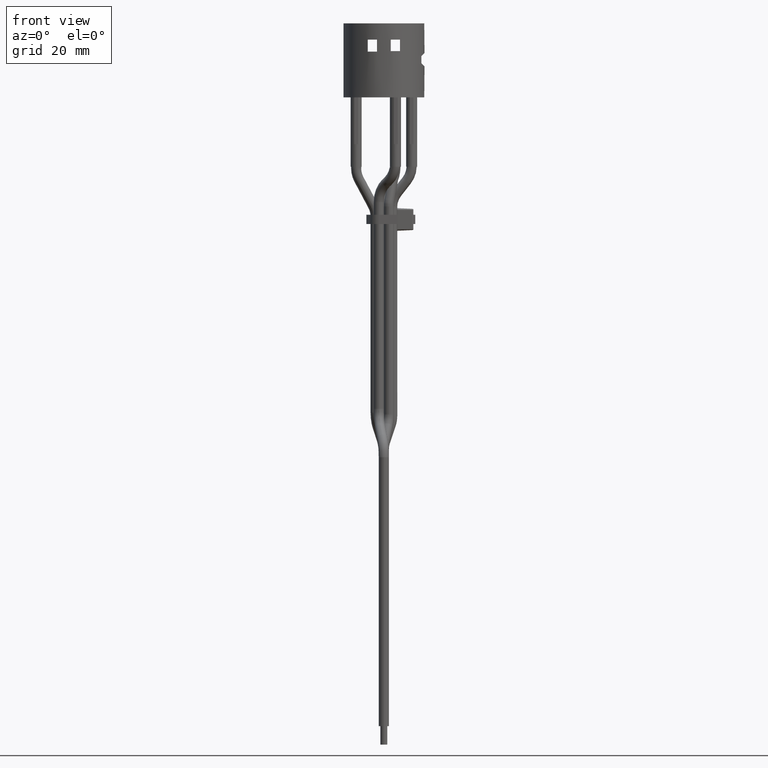
[diagram: clean part render]
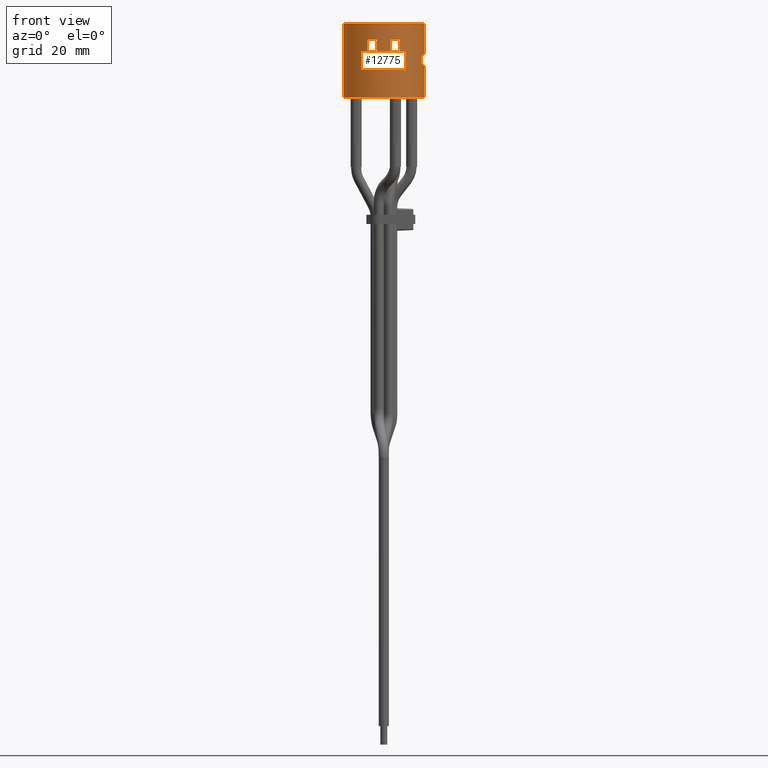
[diagram: same view with one face highlighted and labeled with its STEP entity id]
A machine part, front view. The second image highlights one B-rep face of the part: STEP entity #12775.
In plain terms, the highlighted cylindrical surface (bore or boss wall) has radius 8.8 mm, axis along (0, -0, 1).
Its self-contained STEP definition (entity closure, byte-faithful):
#143=ELLIPSE('',#13459,12.4450793488832,8.8);
#144=ELLIPSE('',#13461,12.4450793488832,8.8);
#325=FACE_BOUND('',#1638,.T.);
#326=FACE_BOUND('',#1639,.T.);
#327=FACE_BOUND('',#1640,.T.);
#328=FACE_BOUND('',#1641,.T.);
#329=FACE_BOUND('',#1642,.T.);
#380=CIRCLE('',#13436,8.8);
#402=CIRCLE('',#13486,8.8);
#403=CIRCLE('',#13487,8.8);
#404=CIRCLE('',#13489,8.8);
#405=CIRCLE('',#13490,8.8);
#406=CIRCLE('',#13492,8.8);
#407=CIRCLE('',#13493,8.8);
#408=CIRCLE('',#13494,8.8);
#409=CIRCLE('',#13495,8.8);
#410=CIRCLE('',#13496,8.8);
#411=CIRCLE('',#13497,8.8);
#412=CIRCLE('',#13498,8.8);
#413=CIRCLE('',#13499,8.8);
#414=CIRCLE('',#13500,8.8);
#669=CYLINDRICAL_SURFACE('',#13491,8.8);
#945=FACE_OUTER_BOUND('',#1637,.T.);
#1637=EDGE_LOOP('',(#9627,#9628,#9629,#9630,#9631,#9632,#9633,#9634,#9635,
#9636,#9637,#9638));
#1638=EDGE_LOOP('',(#9639,#9640,#9641,#9642));
#1639=EDGE_LOOP('',(#9643,#9644,#9645,#9646));
#1640=EDGE_LOOP('',(#9647,#9648,#9649,#9650));
#1641=EDGE_LOOP('',(#9651,#9652,#9653,#9654));
#1642=EDGE_LOOP('',(#9655,#9656,#9657,#9658));
#2838=LINE('',#19204,#4300);
#2839=LINE('',#19205,#4301);
#2910=LINE('',#19793,#4372);
#2912=LINE('',#19797,#4374);
#2914=LINE('',#19811,#4376);
#2915=LINE('',#19812,#4377);
#2916=LINE('',#19817,#4378);
#2917=LINE('',#19820,#4379);
#2918=LINE('',#19825,#4380);
#2919=LINE('',#19828,#4381);
#2920=LINE('',#19833,#4382);
#2921=LINE('',#19836,#4383);
#2922=LINE('',#19841,#4384);
#2923=LINE('',#19844,#4385);
#4300=VECTOR('',#15359,10.);
#4301=VECTOR('',#15360,10.);
#4372=VECTOR('',#15473,10.);
#4374=VECTOR('',#15475,10.);
#4376=VECTOR('',#15495,8.8);
#4377=VECTOR('',#15496,8.8);
#4378=VECTOR('',#15499,10.);
#4379=VECTOR('',#15502,10.);
#4380=VECTOR('',#15505,10.);
#4381=VECTOR('',#15508,10.);
#4382=VECTOR('',#15511,10.);
#4383=VECTOR('',#15514,10.);
#4384=VECTOR('',#15517,10.);
#4385=VECTOR('',#15520,10.);
#5489=VERTEX_POINT('',#18783);
#5651=VERTEX_POINT('',#19194);
#5652=VERTEX_POINT('',#19195);
#5653=VERTEX_POINT('',#19199);
#5654=VERTEX_POINT('',#19200);
#5731=VERTEX_POINT('',#19791);
#5732=VERTEX_POINT('',#19792);
#5733=VERTEX_POINT('',#19794);
#5734=VERTEX_POINT('',#19796);
#5735=VERTEX_POINT('',#19801);
#5736=VERTEX_POINT('',#19805);
#5737=VERTEX_POINT('',#19809);
#5738=VERTEX_POINT('',#19813);
#5739=VERTEX_POINT('',#19814);
#5740=VERTEX_POINT('',#19816);
#5741=VERTEX_POINT('',#19818);
#5742=VERTEX_POINT('',#19821);
#5743=VERTEX_POINT('',#19822);
#5744=VERTEX_POINT('',#19824);
#5745=VERTEX_POINT('',#19826);
#5746=VERTEX_POINT('',#19829);
#5747=VERTEX_POINT('',#19830);
#5748=VERTEX_POINT('',#19832);
#5749=VERTEX_POINT('',#19834);
#5750=VERTEX_POINT('',#19837);
#5751=VERTEX_POINT('',#19838);
#5752=VERTEX_POINT('',#19840);
#5753=VERTEX_POINT('',#19842);
#6914=EDGE_CURVE('',#5489,#5489,#380,.T.);
#7093=EDGE_CURVE('',#5651,#5652,#143,.T.);
#7095=EDGE_CURVE('',#5653,#5654,#144,.T.);
#7097=EDGE_CURVE('',#5654,#5651,#2838,.T.);
#7098=EDGE_CURVE('',#5652,#5653,#2839,.T.);
#7213=EDGE_CURVE('',#5731,#5732,#2910,.T.);
#7215=EDGE_CURVE('',#5734,#5733,#2912,.T.);
#7217=EDGE_CURVE('',#5732,#5735,#402,.T.);
#7218=EDGE_CURVE('',#5735,#5734,#403,.T.);
#7219=EDGE_CURVE('',#5733,#5736,#404,.T.);
#7220=EDGE_CURVE('',#5736,#5731,#405,.T.);
#7221=EDGE_CURVE('',#5737,#5737,#406,.T.);
#7222=EDGE_CURVE('',#5737,#5735,#2914,.T.);
#7223=EDGE_CURVE('',#5736,#5489,#2915,.T.);
#7224=EDGE_CURVE('',#5738,#5739,#407,.T.);
#7225=EDGE_CURVE('',#5739,#5740,#2916,.T.);
#7226=EDGE_CURVE('',#5740,#5741,#408,.T.);
#7227=EDGE_CURVE('',#5741,#5738,#2917,.T.);
#7228=EDGE_CURVE('',#5742,#5743,#409,.T.);
#7229=EDGE_CURVE('',#5743,#5744,#2918,.T.);
#7230=EDGE_CURVE('',#5744,#5745,#410,.T.);
#7231=EDGE_CURVE('',#5745,#5742,#2919,.T.);
#7232=EDGE_CURVE('',#5746,#5747,#411,.T.);
#7233=EDGE_CURVE('',#5747,#5748,#2920,.T.);
#7234=EDGE_CURVE('',#5748,#5749,#412,.T.);
#7235=EDGE_CURVE('',#5749,#5746,#2921,.T.);
#7236=EDGE_CURVE('',#5750,#5751,#413,.T.);
#7237=EDGE_CURVE('',#5751,#5752,#2922,.T.);
#7238=EDGE_CURVE('',#5752,#5753,#414,.T.);
#7239=EDGE_CURVE('',#5753,#5750,#2923,.T.);
#9627=ORIENTED_EDGE('',*,*,#7221,.T.);
#9628=ORIENTED_EDGE('',*,*,#7222,.T.);
#9629=ORIENTED_EDGE('',*,*,#7218,.T.);
#9630=ORIENTED_EDGE('',*,*,#7215,.T.);
#9631=ORIENTED_EDGE('',*,*,#7219,.T.);
#9632=ORIENTED_EDGE('',*,*,#7223,.T.);
#9633=ORIENTED_EDGE('',*,*,#6914,.F.);
#9634=ORIENTED_EDGE('',*,*,#7223,.F.);
#9635=ORIENTED_EDGE('',*,*,#7220,.T.);
#9636=ORIENTED_EDGE('',*,*,#7213,.T.);
#9637=ORIENTED_EDGE('',*,*,#7217,.T.);
#9638=ORIENTED_EDGE('',*,*,#7222,.F.);
#9639=ORIENTED_EDGE('',*,*,#7095,.T.);
#9640=ORIENTED_EDGE('',*,*,#7097,.T.);
#9641=ORIENTED_EDGE('',*,*,#7093,.T.);
#9642=ORIENTED_EDGE('',*,*,#7098,.T.);
#9643=ORIENTED_EDGE('',*,*,#7224,.T.);
#9644=ORIENTED_EDGE('',*,*,#7225,.T.);
#9645=ORIENTED_EDGE('',*,*,#7226,.T.);
#9646=ORIENTED_EDGE('',*,*,#7227,.T.);
#9647=ORIENTED_EDGE('',*,*,#7228,.T.);
#9648=ORIENTED_EDGE('',*,*,#7229,.T.);
#9649=ORIENTED_EDGE('',*,*,#7230,.T.);
#9650=ORIENTED_EDGE('',*,*,#7231,.T.);
#9651=ORIENTED_EDGE('',*,*,#7232,.T.);
#9652=ORIENTED_EDGE('',*,*,#7233,.T.);
#9653=ORIENTED_EDGE('',*,*,#7234,.T.);
#9654=ORIENTED_EDGE('',*,*,#7235,.T.);
#9655=ORIENTED_EDGE('',*,*,#7236,.T.);
#9656=ORIENTED_EDGE('',*,*,#7237,.T.);
#9657=ORIENTED_EDGE('',*,*,#7238,.T.);
#9658=ORIENTED_EDGE('',*,*,#7239,.T.);
#12775=ADVANCED_FACE('',(#945,#325,#326,#327,#328,#329),#669,.T.);
#13436=AXIS2_PLACEMENT_3D('',#18784,#15168,#15169);
#13459=AXIS2_PLACEMENT_3D('',#19196,#15349,#15350);
#13461=AXIS2_PLACEMENT_3D('',#19201,#15354,#15355);
#13486=AXIS2_PLACEMENT_3D('',#19802,#15481,#15482);
#13487=AXIS2_PLACEMENT_3D('',#19803,#15483,#15484);
#13489=AXIS2_PLACEMENT_3D('',#19806,#15487,#15488);
#13490=AXIS2_PLACEMENT_3D('',#19807,#15489,#15490);
#13491=AXIS2_PLACEMENT_3D('',#19808,#15491,#15492);
#13492=AXIS2_PLACEMENT_3D('',#19810,#15493,#15494);
#13493=AXIS2_PLACEMENT_3D('',#19815,#15497,#15498);
#13494=AXIS2_PLACEMENT_3D('',#19819,#15500,#15501);
#13495=AXIS2_PLACEMENT_3D('',#19823,#15503,#15504);
#13496=AXIS2_PLACEMENT_3D('',#19827,#15506,#15507);
#13497=AXIS2_PLACEMENT_3D('',#19831,#15509,#15510);
#13498=AXIS2_PLACEMENT_3D('',#19835,#15512,#15513);
#13499=AXIS2_PLACEMENT_3D('',#19839,#15515,#15516);
#13500=AXIS2_PLACEMENT_3D('',#19843,#15518,#15519);
#15168=DIRECTION('center_axis',(-9.53300760508407E-29,1.23414285699513E-14,
-1.));
#15169=DIRECTION('ref_axis',(7.84112399150108E-15,-1.,-1.23414285699513E-14));
#15349=DIRECTION('center_axis',(-0.707106781186548,-1.42712197778569E-14,
0.707106781186548));
#15350=DIRECTION('ref_axis',(0.707106781186547,-3.18219588482705E-15,0.707106781186547));
#15354=DIRECTION('center_axis',(-0.707106781186548,3.18219588482705E-15,
-0.707106781186548));
#15355=DIRECTION('ref_axis',(0.707106781186547,1.42712197778569E-14,-0.707106781186547));
#15359=DIRECTION('',(9.53300760508407E-29,-1.23414285699513E-14,1.));
#15360=DIRECTION('',(-9.53300760508407E-29,1.23414285699513E-14,-1.));
#15473=DIRECTION('',(9.53300760508407E-29,-1.23414285699513E-14,1.));
#15475=DIRECTION('',(-9.53300760508407E-29,1.23414285699513E-14,-1.));
#15481=DIRECTION('center_axis',(9.53300760508407E-29,-1.23414285699513E-14,
1.));
#15482=DIRECTION('ref_axis',(7.84112399150108E-15,-1.,-1.23414285699513E-14));
#15483=DIRECTION('center_axis',(9.53300760508407E-29,-1.23414285699513E-14,
1.));
#15484=DIRECTION('ref_axis',(7.84112399150108E-15,-1.,-1.23414285699513E-14));
#15487=DIRECTION('center_axis',(-9.53300760508407E-29,1.23414285699513E-14,
-1.));
#15488=DIRECTION('ref_axis',(7.84112399150108E-15,-1.,-1.23414285699513E-14));
#15489=DIRECTION('center_axis',(-9.53300760508407E-29,1.23414285699513E-14,
-1.));
#15490=DIRECTION('ref_axis',(7.84112399150108E-15,-1.,-1.23414285699513E-14));
#15491=DIRECTION('center_axis',(9.53300760508407E-29,-1.23414285699513E-14,
1.));
#15492=DIRECTION('ref_axis',(7.84112399150108E-15,-1.,-1.23414285699513E-14));
#15493=DIRECTION('center_axis',(-9.53300760508407E-29,1.23414285699513E-14,
-1.));
#15494=DIRECTION('ref_axis',(7.84112399150108E-15,-1.,-1.23414285699513E-14));
#15495=DIRECTION('',(-9.53300760508407E-29,1.23414285699513E-14,-1.));
#15496=DIRECTION('',(-9.53300760508407E-29,1.23414285699513E-14,-1.));
#15497=DIRECTION('center_axis',(-1.11022302462506E-15,-1.23414285699514E-14,
1.));
#15498=DIRECTION('ref_axis',(7.84112399150108E-15,-1.,-1.23414285699513E-14));
#15499=DIRECTION('',(-9.53300760508407E-29,1.23414285699513E-14,-1.));
#15500=DIRECTION('center_axis',(-9.53300760508407E-29,1.23414285699513E-14,
-1.));
#15501=DIRECTION('ref_axis',(7.84112399150108E-15,-1.,-1.23414285699513E-14));
#15502=DIRECTION('',(9.53300760508407E-29,-1.23414285699513E-14,1.));
#15503=DIRECTION('center_axis',(-1.11022302462506E-15,-1.23414285699514E-14,
1.));
#15504=DIRECTION('ref_axis',(7.84112399150108E-15,-1.,-1.23414285699513E-14));
#15505=DIRECTION('',(-9.53300760508407E-29,1.23414285699513E-14,-1.));
#15506=DIRECTION('center_axis',(-9.53300760508407E-29,1.23414285699513E-14,
-1.));
#15507=DIRECTION('ref_axis',(7.84112399150108E-15,-1.,-1.23414285699513E-14));
#15508=DIRECTION('',(9.53300760508407E-29,-1.23414285699513E-14,1.));
#15509=DIRECTION('center_axis',(-1.11022302462506E-15,-1.23414285699514E-14,
1.));
#15510=DIRECTION('ref_axis',(7.84112399150108E-15,-1.,-1.23414285699513E-14));
#15511=DIRECTION('',(-9.53300760508407E-29,1.23414285699513E-14,-1.));
#15512=DIRECTION('center_axis',(-9.53300760508407E-29,1.23414285699513E-14,
-1.));
#15513=DIRECTION('ref_axis',(7.84112399150108E-15,-1.,-1.23414285699513E-14));
#15514=DIRECTION('',(9.53300760508407E-29,-1.23414285699513E-14,1.));
#15515=DIRECTION('center_axis',(-1.11022302462506E-15,-1.23414285699514E-14,
1.));
#15516=DIRECTION('ref_axis',(7.84112399150108E-15,-1.,-1.23414285699513E-14));
#15517=DIRECTION('',(-9.53300760508407E-29,1.23414285699513E-14,-1.));
#15518=DIRECTION('center_axis',(-9.53300760508407E-29,1.23414285699513E-14,
-1.));
#15519=DIRECTION('ref_axis',(7.84112399150108E-15,-1.,-1.23414285699513E-14));
#15520=DIRECTION('',(9.53300760508407E-29,-1.23414285699513E-14,1.));
#18783=CARTESIAN_POINT('',(-7.00795803084592E-14,8.8,0.400000000000082));
#18784=CARTESIAN_POINT('Origin',(3.50324616081206E-45,-1.74455488201439E-61,
0.399999999999974));
#19194=CARTESIAN_POINT('',(8.10000000000002,-3.43947670438403,9.29999999999993));
#19195=CARTESIAN_POINT('',(8.09999999999997,3.43947670438393,9.30000000000002));
#19196=CARTESIAN_POINT('Origin',(7.62640608406732E-29,-9.87314285596116E-15,
1.19999999999998));
#19199=CARTESIAN_POINT('',(8.09999999999997,3.43947670438395,7.80000000000002));
#19200=CARTESIAN_POINT('',(8.10000000000002,-3.43947670438401,7.79999999999993));
#19201=CARTESIAN_POINT('Origin',(1.47761617878803E-27,-1.91292142834246E-13,
15.9));
#19204=CARTESIAN_POINT('',(8.10000000000002,-3.43947670438392,0.399999999999931));
#19205=CARTESIAN_POINT('',(8.09999999999997,3.43947670438404,0.400000000000016));
#19791=CARTESIAN_POINT('',(4.2602816808281,7.69999999999995,7.20000000000007));
#19792=CARTESIAN_POINT('',(4.2602816808281,7.69999999999992,9.70000000000007));
#19793=CARTESIAN_POINT('',(4.2602816808281,7.70000000000003,0.400000000000069));
#19794=CARTESIAN_POINT('',(-4.26028168082823,7.69999999999988,7.20000000000007));
#19796=CARTESIAN_POINT('',(-4.26028168082823,7.69999999999985,9.70000000000007));
#19797=CARTESIAN_POINT('',(-4.26028168082823,7.69999999999997,0.400000000000069));
#19801=CARTESIAN_POINT('',(-7.00795803084583E-14,8.79999999999989,9.70000000000008));
#19802=CARTESIAN_POINT('Origin',(8.86569707272819E-28,-1.14775285700548E-13,
9.69999999999997));
#19803=CARTESIAN_POINT('Origin',(8.86569707272819E-28,-1.14775285700548E-13,
9.69999999999997));
#19805=CARTESIAN_POINT('',(-7.00795803084585E-14,8.79999999999992,7.20000000000008));
#19806=CARTESIAN_POINT('Origin',(6.48244517145717E-28,-8.39217142756692E-14,
7.19999999999997));
#19807=CARTESIAN_POINT('Origin',(6.48244517145717E-28,-8.39217142756692E-14,
7.19999999999997));
#19808=CARTESIAN_POINT('Origin',(3.50324616081206E-45,-1.74455488201439E-61,
0.399999999999974));
#19809=CARTESIAN_POINT('',(-6.79242019419583E-14,8.79999999999981,16.4000000000001));
#19810=CARTESIAN_POINT('Origin',(1.52528121681345E-27,-1.97462857119222E-13,
16.4));
#19811=CARTESIAN_POINT('',(-7.00795803084592E-14,8.8,0.400000000000082));
#19812=CARTESIAN_POINT('',(-7.00795803084592E-14,8.8,0.400000000000082));
#19813=CARTESIAN_POINT('',(-3.49999999999994,-8.07403244977396,12.8999999999999));
#19814=CARTESIAN_POINT('',(-1.49999999999993,-8.67121675429711,12.8999999999999));
#19815=CARTESIAN_POINT('Origin',(1.19162595063551E-27,-1.54267857124392E-13,
12.9));
#19816=CARTESIAN_POINT('',(-1.49999999999993,-8.67121675429708,10.2999999999999));
#19817=CARTESIAN_POINT('',(-1.49999999999993,-8.67121675429696,0.399999999999867));
#19818=CARTESIAN_POINT('',(-3.49999999999994,-8.07403244977393,10.2999999999999));
#19819=CARTESIAN_POINT('Origin',(9.43767752903323E-28,-1.22180142842518E-13,
10.3));
#19820=CARTESIAN_POINT('',(-3.49999999999993,-8.07403244977381,0.399999999999874));
#19821=CARTESIAN_POINT('',(-1.50000000000007,8.67121675429678,12.9000000000001));
#19822=CARTESIAN_POINT('',(-3.50000000000006,8.0740324497736,12.9000000000001));
#19823=CARTESIAN_POINT('Origin',(1.19162595063551E-27,-1.54267857124392E-13,
12.9));
#19824=CARTESIAN_POINT('',(-3.50000000000006,8.07403244977363,10.3000000000001));
#19825=CARTESIAN_POINT('',(-3.50000000000006,8.07403244977376,0.400000000000073));
#19826=CARTESIAN_POINT('',(-1.50000000000007,8.67121675429681,10.3000000000001));
#19827=CARTESIAN_POINT('Origin',(9.43767752903323E-28,-1.22180142842518E-13,
10.3));
#19828=CARTESIAN_POINT('',(-1.50000000000007,8.67121675429693,0.400000000000081));
#19829=CARTESIAN_POINT('',(1.50000000000007,-8.67121675429709,12.8999999999999));
#19830=CARTESIAN_POINT('',(3.50000000000006,-8.07403244977391,12.8999999999999));
#19831=CARTESIAN_POINT('Origin',(1.19162595063551E-27,-1.54267857124392E-13,
12.9));
#19832=CARTESIAN_POINT('',(3.50000000000006,-8.07403244977388,10.2999999999999));
#19833=CARTESIAN_POINT('',(3.50000000000007,-8.07403244977376,0.399999999999874));
#19834=CARTESIAN_POINT('',(1.50000000000007,-8.67121675429706,10.2999999999999));
#19835=CARTESIAN_POINT('Origin',(9.43767752903323E-28,-1.22180142842518E-13,
10.3));
#19836=CARTESIAN_POINT('',(1.50000000000007,-8.67121675429693,0.399999999999867));
#19837=CARTESIAN_POINT('',(3.49999999999994,8.07403244977366,12.9000000000001));
#19838=CARTESIAN_POINT('',(1.49999999999993,8.6712167542968,12.9000000000001));
#19839=CARTESIAN_POINT('Origin',(1.19162595063551E-27,-1.54267857124392E-13,
12.9));
#19840=CARTESIAN_POINT('',(1.49999999999993,8.67121675429684,10.3000000000001));
#19841=CARTESIAN_POINT('',(1.49999999999993,8.67121675429696,0.400000000000081));
#19842=CARTESIAN_POINT('',(3.49999999999994,8.07403244977369,10.3000000000001));
#19843=CARTESIAN_POINT('Origin',(9.43767752903323E-28,-1.22180142842518E-13,
10.3));
#19844=CARTESIAN_POINT('',(3.49999999999994,8.07403244977381,0.400000000000073));